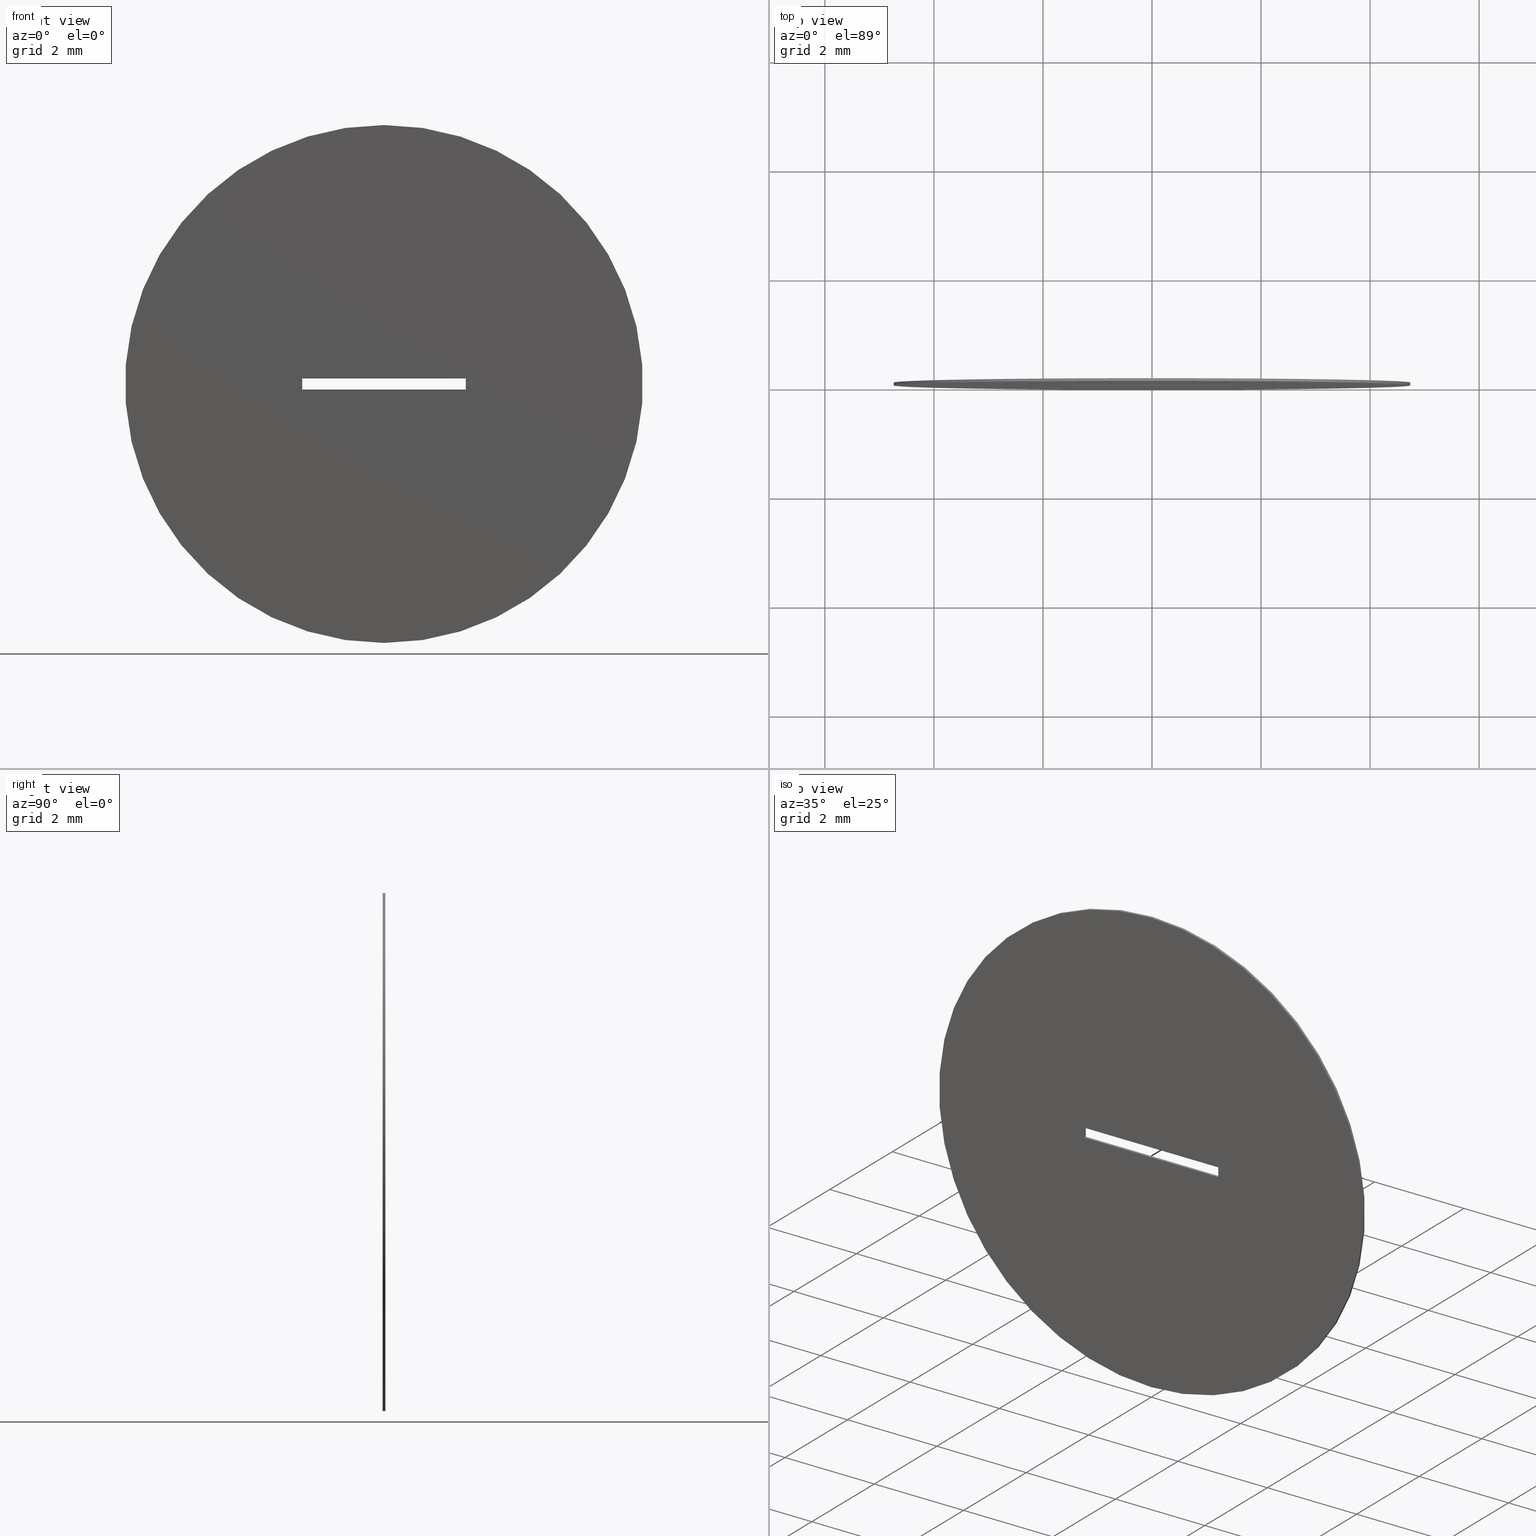
[diagram: canonical four-view strip — front | top / right | iso, engineering-drawing reading convention]
A machine part, canonical four-view strip (front | top / right | iso — engineering-drawing reading convention). The complete STEP part file that produces these views, byte-faithful:
ISO-10303-21;
HEADER;
FILE_DESCRIPTION (( 'STEP AP203' ),
    '1' );
FILE_NAME ('1.5.4.10-ZXG-9.5-200.STEP',
    '2024-05-29T06:49:09',
    ( '' ),
    ( '' ),
    'SwSTEP 2.0',
    'SolidWorks 2021',
    '' );
FILE_SCHEMA (( 'CONFIG_CONTROL_DESIGN' ));
ENDSEC;

DATA;
#1 = VERTEX_POINT ( 'NONE', #136 ) ;
#2 = VECTOR ( 'NONE', #296, 1000.000000000000000 ) ;
#3 = CC_DESIGN_PERSON_AND_ORGANIZATION_ASSIGNMENT ( #22, #309, ( #122 ) ) ;
#4 = DIRECTION ( 'NONE',  ( 0.000000000000000000, 0.000000000000000000, 1.000000000000000000 ) ) ;
#5 = CARTESIAN_POINT ( 'NONE',  ( -1.499999999999999778, 0.000000000000000000, -0.09999999999999999167 ) ) ;
#6 = DATE_AND_TIME ( #215, #162 ) ;
#7 = LINE ( 'NONE', #89, #75 ) ;
#8 = PRODUCT_DEFINITION_FORMATION_WITH_SPECIFIED_SOURCE ( '�κ�', '', #79, .NOT_KNOWN. ) ;
#9 = FACE_BOUND ( 'NONE', #263, .T. ) ;
#10 = PLANE ( 'NONE',  #181 ) ;
#11 = CARTESIAN_POINT ( 'NONE',  ( 0.000000000000000000, 0.000000000000000000, 0.000000000000000000 ) ) ;
#12 = AXIS2_PLACEMENT_3D ( 'NONE', #91, #191, #272 ) ;
#13 = DIRECTION ( 'NONE',  ( 1.000000000000000000, 0.000000000000000000, -0.000000000000000000 ) ) ;
#14 = APPLICATION_CONTEXT ( 'configuration controlled 3d designs of mechanical parts and assemblies' ) ;
#15 = FACE_OUTER_BOUND ( 'NONE', #131, .T. ) ;
#16 = CC_DESIGN_PERSON_AND_ORGANIZATION_ASSIGNMENT ( #186, #29, ( #8 ) ) ;
#17 = AXIS2_PLACEMENT_3D ( 'NONE', #66, #70, #278 ) ;
#18 = CARTESIAN_POINT ( 'NONE',  ( -1.499999999999999778, 0.05000000000000000278, -0.09999999999999999167 ) ) ;
#19 = APPLICATION_PROTOCOL_DEFINITION ( 'international standard', 'config_control_design', 1994, #189 ) ;
#20 = COORDINATED_UNIVERSAL_TIME_OFFSET ( 8, 0, .AHEAD. ) ;
#21 = VERTEX_POINT ( 'NONE', #62 ) ;
#22 = PERSON_AND_ORGANIZATION ( #146, #25 ) ;
#23 = VERTEX_POINT ( 'NONE', #269 ) ;
#24 = EDGE_CURVE ( 'NONE', #283, #183, #225, .T. ) ;
#25 = ORGANIZATION ( 'δָ��', 'δָ��', '' ) ;
#26 = ORIENTED_EDGE ( 'NONE', *, *, #124, .F. ) ;
#27 = ORIENTED_EDGE ( 'NONE', *, *, #231, .T. ) ;
#28 = ORIENTED_EDGE ( 'NONE', *, *, #24, .T. ) ;
#29 = PERSON_AND_ORGANIZATION_ROLE ( 'creator' ) ;
#30 = CARTESIAN_POINT ( 'NONE',  ( 0.000000000000000000, 0.05000000000000000278, 0.000000000000000000 ) ) ;
#31 = CARTESIAN_POINT ( 'NONE',  ( -1.499999999999999778, 0.05000000000000000278, -0.09999999999999999167 ) ) ;
#32 = CALENDAR_DATE ( 2024, 29, 5 ) ;
#33 = CARTESIAN_POINT ( 'NONE',  ( 0.000000000000000000, 0.000000000000000000, -4.750000000000000000 ) ) ;
#34 = EDGE_CURVE ( 'NONE', #202, #1, #206, .T. ) ;
#35 = COORDINATED_UNIVERSAL_TIME_OFFSET ( 8, 0, .AHEAD. ) ;
#36 = DIRECTION ( 'NONE',  ( 0.000000000000000000, -0.000000000000000000, 1.000000000000000000 ) ) ;
#37 = CIRCLE ( 'NONE', #201, 4.750000000000000000 ) ;
#38 = CARTESIAN_POINT ( 'NONE',  ( 1.500000000000000222, 0.05000000000000000278, -0.09999999999999999167 ) ) ;
#39 = FACE_OUTER_BOUND ( 'NONE', #216, .T. ) ;
#40 = APPROVAL ( #154, 'δָ��' ) ;
#41 = DIRECTION ( 'NONE',  ( -0.000000000000000000, -1.000000000000000000, -0.000000000000000000 ) ) ;
#42 = AXIS2_PLACEMENT_3D ( 'NONE', #30, #141, #56 ) ;
#43 = LOCAL_TIME ( 14, 49, 9.000000000000000000, #125 ) ;
#44 = DIRECTION ( 'NONE',  ( 0.000000000000000000, 0.000000000000000000, -1.000000000000000000 ) ) ;
#45 = CARTESIAN_POINT ( 'NONE',  ( -1.499999999999999778, 0.05000000000000000278, -0.09999999999999999167 ) ) ;
#46 = CIRCLE ( 'NONE', #42, 4.750000000000000000 ) ;
#47 = APPROVAL_ROLE ( '' ) ;
#48 = ORIENTED_EDGE ( 'NONE', *, *, #219, .T. ) ;
#49 = APPLICATION_PROTOCOL_DEFINITION ( 'international standard', 'config_control_design', 1994, #14 ) ;
#50 = EDGE_CURVE ( 'NONE', #204, #260, #168, .T. ) ;
#51 = ORIENTED_EDGE ( 'NONE', *, *, #275, .F. ) ;
#52 = ORIENTED_EDGE ( 'NONE', *, *, #275, .T. ) ;
#53 = ORIENTED_EDGE ( 'NONE', *, *, #174, .T. ) ;
#54 = CC_DESIGN_DATE_AND_TIME_ASSIGNMENT ( #294, #242, ( #120 ) ) ;
#55 = ORIENTED_EDGE ( 'NONE', *, *, #34, .T. ) ;
#56 = DIRECTION ( 'NONE',  ( 0.000000000000000000, 0.000000000000000000, 1.000000000000000000 ) ) ;
#57 = PERSON_AND_ORGANIZATION_ROLE ( 'classification_officer' ) ;
#58 = DIRECTION ( 'NONE',  ( 1.000000000000000000, 0.000000000000000000, 0.000000000000000000 ) ) ;
#59 = CARTESIAN_POINT ( 'NONE',  ( 0.000000000000000000, 0.05000000000000000278, 0.000000000000000000 ) ) ;
#60 = EDGE_CURVE ( 'NONE', #107, #283, #230, .T. ) ;
#61 = DESIGN_CONTEXT ( 'detailed design', #14, 'design' ) ;
#62 = CARTESIAN_POINT ( 'NONE',  ( 0.000000000000000000, 0.05000000000000000278, -4.750000000000000000 ) ) ;
#63 = LINE ( 'NONE', #187, #223 ) ;
#64 = LOCAL_TIME ( 14, 49, 9.000000000000000000, #134 ) ;
#65 = EDGE_CURVE ( 'NONE', #260, #183, #114, .T. ) ;
#66 = CARTESIAN_POINT ( 'NONE',  ( 0.000000000000000000, 0.000000000000000000, 0.000000000000000000 ) ) ;
#67 = DIRECTION ( 'NONE',  ( 0.000000000000000000, 0.000000000000000000, 1.000000000000000000 ) ) ;
#68 = CARTESIAN_POINT ( 'NONE',  ( -1.499999999999999778, 0.000000000000000000, 0.1000000000000000194 ) ) ;
#69 = APPROVAL_PERSON_ORGANIZATION ( #281, #40, #73 ) ;
#70 = DIRECTION ( 'NONE',  ( 0.000000000000000000, 1.000000000000000000, 0.000000000000000000 ) ) ;
#71 = EDGE_CURVE ( 'NONE', #183, #292, #7, .T. ) ;
#72 = CARTESIAN_POINT ( 'NONE',  ( 1.500000000000000222, 0.05000000000000000278, 0.1000000000000000194 ) ) ;
#73 = APPROVAL_ROLE ( '' ) ;
#74 = ORIENTED_EDGE ( 'NONE', *, *, #113, .T. ) ;
#75 = VECTOR ( 'NONE', #165, 1000.000000000000000 ) ;
#76 = APPROVAL ( #110, 'δָ��' ) ;
#77 = DIRECTION ( 'NONE',  ( 0.000000000000000000, 0.000000000000000000, 1.000000000000000000 ) ) ;
#78 = ORIENTED_EDGE ( 'NONE', *, *, #65, .T. ) ;
#79 = PRODUCT ( '1.5.4.10-ZXG-9.5-200', '1.5.4.10-ZXG-9.5-200', '', ( #127 ) ) ;
#80 = ORIENTED_EDGE ( 'NONE', *, *, #249, .T. ) ;
#81 =( LENGTH_UNIT ( ) NAMED_UNIT ( * ) SI_UNIT ( .MILLI., .METRE. ) );
#82 = EDGE_LOOP ( 'NONE', ( #261, #158, #290, #286 ) ) ;
#83 = ADVANCED_FACE ( 'NONE', ( #247, #246 ), #10, .T. ) ;
#84 = AXIS2_PLACEMENT_3D ( 'NONE', #227, #115, #266 ) ;
#85 = ORIENTED_EDGE ( 'NONE', *, *, #60, .F. ) ;
#86 = DIRECTION ( 'NONE',  ( -1.000000000000000000, -0.000000000000000000, -0.000000000000000000 ) ) ;
#87 = APPROVAL_ROLE ( '' ) ;
#88 = DIRECTION ( 'NONE',  ( -0.000000000000000000, -0.000000000000000000, -1.000000000000000000 ) ) ;
#89 = CARTESIAN_POINT ( 'NONE',  ( -1.499999999999999778, 0.000000000000000000, 0.1000000000000000194 ) ) ;
#90 = CARTESIAN_POINT ( 'NONE',  ( -1.499999999999999778, 0.000000000000000000, -0.09999999999999999167 ) ) ;
#91 = CARTESIAN_POINT ( 'NONE',  ( 1.500000000000000222, 0.05000000000000000278, -0.09999999999999999167 ) ) ;
#92 = DIRECTION ( 'NONE',  ( -0.000000000000000000, -1.000000000000000000, -0.000000000000000000 ) ) ;
#93 = AXIS2_PLACEMENT_3D ( 'NONE', #31, #123, #13 ) ;
#94 = UNCERTAINTY_MEASURE_WITH_UNIT (LENGTH_MEASURE( 1.000000000000000082E-05 ), #81, 'distance_accuracy_value', 'NONE');
#95 = LOCAL_TIME ( 14, 49, 9.000000000000000000, #233 ) ;
#96 = LINE ( 'NONE', #211, #276 ) ;
#97 = DIRECTION ( 'NONE',  ( -0.000000000000000000, -1.000000000000000000, -0.000000000000000000 ) ) ;
#98 = DIRECTION ( 'NONE',  ( 0.000000000000000000, 0.000000000000000000, -1.000000000000000000 ) ) ;
#99 = EDGE_CURVE ( 'NONE', #1, #204, #143, .T. ) ;
#100 = AXIS2_PLACEMENT_3D ( 'NONE', #11, #300, #212 ) ;
#101 = PLANE ( 'NONE',  #228 ) ;
#102 = DIRECTION ( 'NONE',  ( 1.000000000000000000, 0.000000000000000000, 0.000000000000000000 ) ) ;
#103 = PRODUCT_RELATED_PRODUCT_CATEGORY ( 'detail', '', ( #79 ) ) ;
#104 = PRODUCT_DEFINITION_SHAPE ( 'NONE', 'NONE',  #122 ) ;
#105 = ORIENTED_EDGE ( 'NONE', *, *, #231, .F. ) ;
#106 = CC_DESIGN_DATE_AND_TIME_ASSIGNMENT ( #239, #130, ( #122 ) ) ;
#107 = VERTEX_POINT ( 'NONE', #229 ) ;
#108 = PERSON_AND_ORGANIZATION ( #146, #25 ) ;
#109 = ORIENTED_EDGE ( 'NONE', *, *, #71, .F. ) ;
#110 = APPROVAL_STATUS ( 'not_yet_approved' ) ;
#111 = ORIENTED_EDGE ( 'NONE', *, *, #129, .T. ) ;
#112 = ORIENTED_EDGE ( 'NONE', *, *, #129, .F. ) ;
#113 = EDGE_CURVE ( 'NONE', #259, #21, #46, .T. ) ;
#114 = LINE ( 'NONE', #270, #192 ) ;
#115 = DIRECTION ( 'NONE',  ( 0.000000000000000000, 1.000000000000000000, 0.000000000000000000 ) ) ;
#116 = PLANE ( 'NONE',  #84 ) ;
#117 = CC_DESIGN_PERSON_AND_ORGANIZATION_ASSIGNMENT ( #138, #57, ( #120 ) ) ;
#118 = ORIENTED_EDGE ( 'NONE', *, *, #271, .T. ) ;
#119 = DIRECTION ( 'NONE',  ( -0.000000000000000000, -1.000000000000000000, -0.000000000000000000 ) ) ;
#120 = SECURITY_CLASSIFICATION ( '', '', #160 ) ;
#121 = LINE ( 'NONE', #302, #172 ) ;
#122 = PRODUCT_DEFINITION ( 'δ֪', '', #8, #61 ) ;
#123 = DIRECTION ( 'NONE',  ( 0.000000000000000000, 0.000000000000000000, 1.000000000000000000 ) ) ;
#124 = EDGE_CURVE ( 'NONE', #202, #292, #161, .T. ) ;
#125 = COORDINATED_UNIVERSAL_TIME_OFFSET ( 8, 0, .AHEAD. ) ;
#126 = VERTEX_POINT ( 'NONE', #33 ) ;
#127 = MECHANICAL_CONTEXT ( 'NONE', #189, 'mechanical' ) ;
#128 = CC_DESIGN_SECURITY_CLASSIFICATION ( #120, ( #8 ) ) ;
#129 = EDGE_CURVE ( 'NONE', #292, #107, #224, .T. ) ;
#130 = DATE_TIME_ROLE ( 'creation_date' ) ;
#131 = EDGE_LOOP ( 'NONE', ( #155, #311, #240, #78 ) ) ;
#132 = ORIENTED_EDGE ( 'NONE', *, *, #99, .T. ) ;
#133 = CLOSED_SHELL ( 'NONE', ( #257, #83, #137, #226, #148, #178, #306, #184 ) ) ;
#134 = COORDINATED_UNIVERSAL_TIME_OFFSET ( 8, 0, .AHEAD. ) ;
#135 = ADVANCED_BREP_SHAPE_REPRESENTATION ( '1.5.4.10-ZXG-9.5-200', ( #167, #156 ), #267 ) ;
#136 = CARTESIAN_POINT ( 'NONE',  ( 1.500000000000000222, 0.05000000000000000278, -0.09999999999999999167 ) ) ;
#137 = ADVANCED_FACE ( 'NONE', ( #250, #9 ), #116, .F. ) ;
#138 = PERSON_AND_ORGANIZATION ( #146, #25 ) ;
#139 = ORIENTED_EDGE ( 'NONE', *, *, #280, .F. ) ;
#140 = DATE_AND_TIME ( #32, #64 ) ;
#141 = DIRECTION ( 'NONE',  ( 0.000000000000000000, 1.000000000000000000, 0.000000000000000000 ) ) ;
#142 = CALENDAR_DATE ( 2024, 29, 5 ) ;
#143 = LINE ( 'NONE', #185, #248 ) ;
#144 = CIRCLE ( 'NONE', #17, 4.750000000000000000 ) ;
#145 = CARTESIAN_POINT ( 'NONE',  ( -1.499999999999999778, 0.05000000000000000278, -0.09999999999999999167 ) ) ;
#146 = PERSON ( 'δָ��', 'δָ��', 'δָ��', ('δָ��'), ('δָ��'), ('δָ��') ) ;
#147 = DIRECTION ( 'NONE',  ( -1.000000000000000000, 0.000000000000000000, -0.000000000000000000 ) ) ;
#148 = ADVANCED_FACE ( 'NONE', ( #208 ), #299, .T. ) ;
#149 = CARTESIAN_POINT ( 'NONE',  ( -1.499999999999999778, 0.000000000000000000, -0.09999999999999999167 ) ) ;
#150 = DIRECTION ( 'NONE',  ( 1.000000000000000000, 0.000000000000000000, 0.000000000000000000 ) ) ;
#151 = VECTOR ( 'NONE', #190, 1000.000000000000000 ) ;
#152 = CARTESIAN_POINT ( 'NONE',  ( 0.000000000000000000, 0.000000000000000000, 0.000000000000000000 ) ) ;
#153 = EDGE_LOOP ( 'NONE', ( #109, #258, #53, #235 ) ) ;
#154 = APPROVAL_STATUS ( 'not_yet_approved' ) ;
#155 = ORIENTED_EDGE ( 'NONE', *, *, #24, .F. ) ;
#156 = AXIS2_PLACEMENT_3D ( 'NONE', #152, #77, #102 ) ;
#157 = CALENDAR_DATE ( 2024, 29, 5 ) ;
#158 = ORIENTED_EDGE ( 'NONE', *, *, #34, .F. ) ;
#159 = CC_DESIGN_PERSON_AND_ORGANIZATION_ASSIGNMENT ( #177, #199, ( #79 ) ) ;
#160 = SECURITY_CLASSIFICATION_LEVEL ( 'unclassified' ) ;
#161 = LINE ( 'NONE', #243, #244 ) ;
#162 = LOCAL_TIME ( 14, 49, 9.000000000000000000, #20 ) ;
#163 = SHAPE_DEFINITION_REPRESENTATION ( #104, #135 ) ;
#164 = FACE_OUTER_BOUND ( 'NONE', #207, .T. ) ;
#165 = DIRECTION ( 'NONE',  ( 1.000000000000000000, 0.000000000000000000, 0.000000000000000000 ) ) ;
#166 = DIRECTION ( 'NONE',  ( -0.000000000000000000, -1.000000000000000000, -0.000000000000000000 ) ) ;
#167 = MANIFOLD_SOLID_BREP ( '͹̨-����1', #133 ) ;
#168 = LINE ( 'NONE', #145, #237 ) ;
#169 = APPROVAL_PERSON_ORGANIZATION ( #108, #76, #87 ) ;
#170 = LINE ( 'NONE', #173, #262 ) ;
#171 = CARTESIAN_POINT ( 'NONE',  ( 0.000000000000000000, 0.05000000000000000278, 0.000000000000000000 ) ) ;
#172 = VECTOR ( 'NONE', #97, 1000.000000000000000 ) ;
#173 = CARTESIAN_POINT ( 'NONE',  ( 5.817072295949927426E-16, 0.05000000000000000278, 4.750000000000000000 ) ) ;
#174 = EDGE_CURVE ( 'NONE', #260, #202, #63, .T. ) ;
#175 = DIRECTION ( 'NONE',  ( -0.000000000000000000, -1.000000000000000000, -0.000000000000000000 ) ) ;
#176 = ORIENTED_EDGE ( 'NONE', *, *, #238, .T. ) ;
#177 = PERSON_AND_ORGANIZATION ( #146, #25 ) ;
#178 = ADVANCED_FACE ( 'NONE', ( #164 ), #245, .T. ) ;
#179 = EDGE_LOOP ( 'NONE', ( #105, #234 ) ) ;
#180 = ORIENTED_EDGE ( 'NONE', *, *, #219, .F. ) ;
#181 = AXIS2_PLACEMENT_3D ( 'NONE', #59, #205, #36 ) ;
#182 = LOCAL_TIME ( 14, 49, 9.000000000000000000, #35 ) ;
#183 = VERTEX_POINT ( 'NONE', #68 ) ;
#184 = ADVANCED_FACE ( 'NONE', ( #213 ), #101, .T. ) ;
#185 = CARTESIAN_POINT ( 'NONE',  ( -1.499999999999999778, 0.05000000000000000278, -0.09999999999999999167 ) ) ;
#186 = PERSON_AND_ORGANIZATION ( #146, #25 ) ;
#187 = CARTESIAN_POINT ( 'NONE',  ( -1.499999999999999778, 0.05000000000000000278, 0.1000000000000000194 ) ) ;
#188 = DIRECTION ( 'NONE',  ( -0.000000000000000000, -1.000000000000000000, -0.000000000000000000 ) ) ;
#189 = APPLICATION_CONTEXT ( 'configuration controlled 3d designs of mechanical parts and assemblies' ) ;
#190 = DIRECTION ( 'NONE',  ( 0.000000000000000000, 0.000000000000000000, 1.000000000000000000 ) ) ;
#191 = DIRECTION ( 'NONE',  ( -1.000000000000000000, 0.000000000000000000, 0.000000000000000000 ) ) ;
#192 = VECTOR ( 'NONE', #166, 1000.000000000000000 ) ;
#193 = LINE ( 'NONE', #253, #203 ) ;
#194 = CARTESIAN_POINT ( 'NONE',  ( 0.000000000000000000, 0.05000000000000000278, 0.000000000000000000 ) ) ;
#195 = CYLINDRICAL_SURFACE ( 'NONE', #252, 4.750000000000000000 ) ;
#196 = CC_DESIGN_APPROVAL ( #76, ( #120 ) ) ;
#197 = CARTESIAN_POINT ( 'NONE',  ( -1.499999999999999778, 0.05000000000000000278, 0.1000000000000000194 ) ) ;
#198 = PERSON_AND_ORGANIZATION ( #146, #25 ) ;
#199 = PERSON_AND_ORGANIZATION_ROLE ( 'design_owner' ) ;
#200 = DIRECTION ( 'NONE',  ( 0.000000000000000000, 0.000000000000000000, -1.000000000000000000 ) ) ;
#201 = AXIS2_PLACEMENT_3D ( 'NONE', #171, #210, #67 ) ;
#202 = VERTEX_POINT ( 'NONE', #72 ) ;
#203 = VECTOR ( 'NONE', #41, 1000.000000000000000 ) ;
#204 = VERTEX_POINT ( 'NONE', #18 ) ;
#205 = DIRECTION ( 'NONE',  ( 0.000000000000000000, 1.000000000000000000, 0.000000000000000000 ) ) ;
#206 = LINE ( 'NONE', #38, #2 ) ;
#207 = EDGE_LOOP ( 'NONE', ( #85, #139, #132, #176 ) ) ;
#208 = FACE_OUTER_BOUND ( 'NONE', #298, .T. ) ;
#209 = APPROVAL ( #279, 'δָ��' ) ;
#210 = DIRECTION ( 'NONE',  ( 0.000000000000000000, 1.000000000000000000, 0.000000000000000000 ) ) ;
#211 = CARTESIAN_POINT ( 'NONE',  ( -1.499999999999999778, 0.05000000000000000278, -0.09999999999999999167 ) ) ;
#212 = DIRECTION ( 'NONE',  ( 0.000000000000000000, 0.000000000000000000, 1.000000000000000000 ) ) ;
#213 = FACE_OUTER_BOUND ( 'NONE', #153, .T. ) ;
#214 = CALENDAR_DATE ( 2024, 29, 5 ) ;
#215 = CALENDAR_DATE ( 2024, 29, 5 ) ;
#216 = EDGE_LOOP ( 'NONE', ( #308, #118, #80, #51 ) ) ;
#217 = DATE_AND_TIME ( #214, #43 ) ;
#218 = ORIENTED_EDGE ( 'NONE', *, *, #280, .T. ) ;
#219 = EDGE_CURVE ( 'NONE', #21, #259, #37, .T. ) ;
#220 = EDGE_LOOP ( 'NONE', ( #236, #180, #52, #27 ) ) ;
#221 = APPROVAL_DATE_TIME ( #6, #209 ) ;
#222 = ORIENTED_EDGE ( 'NONE', *, *, #60, .T. ) ;
#223 = VECTOR ( 'NONE', #58, 1000.000000000000000 ) ;
#224 = LINE ( 'NONE', #295, #282 ) ;
#225 = LINE ( 'NONE', #90, #151 ) ;
#226 = ADVANCED_FACE ( 'NONE', ( #303 ), #256, .T. ) ;
#227 = CARTESIAN_POINT ( 'NONE',  ( 0.000000000000000000, 0.000000000000000000, 0.000000000000000000 ) ) ;
#228 = AXIS2_PLACEMENT_3D ( 'NONE', #197, #273, #147 ) ;
#229 = CARTESIAN_POINT ( 'NONE',  ( 1.500000000000000222, 0.000000000000000000, -0.09999999999999999167 ) ) ;
#230 = LINE ( 'NONE', #5, #310 ) ;
#231 = EDGE_CURVE ( 'NONE', #126, #23, #144, .T. ) ;
#232 = CARTESIAN_POINT ( 'NONE',  ( 1.500000000000000222, 0.000000000000000000, 0.1000000000000000194 ) ) ;
#233 = COORDINATED_UNIVERSAL_TIME_OFFSET ( 8, 0, .AHEAD. ) ;
#234 = ORIENTED_EDGE ( 'NONE', *, *, #249, .F. ) ;
#235 = ORIENTED_EDGE ( 'NONE', *, *, #124, .T. ) ;
#236 = ORIENTED_EDGE ( 'NONE', *, *, #271, .F. ) ;
#237 = VECTOR ( 'NONE', #4, 1000.000000000000000 ) ;
#238 = EDGE_CURVE ( 'NONE', #204, #283, #96, .T. ) ;
#239 = DATE_AND_TIME ( #157, #95 ) ;
#240 = ORIENTED_EDGE ( 'NONE', *, *, #50, .T. ) ;
#241 = EDGE_LOOP ( 'NONE', ( #48, #74 ) ) ;
#242 = DATE_TIME_ROLE ( 'classification_date' ) ;
#243 = CARTESIAN_POINT ( 'NONE',  ( 1.500000000000000222, 0.05000000000000000278, 0.1000000000000000194 ) ) ;
#244 = VECTOR ( 'NONE', #188, 1000.000000000000000 ) ;
#245 = PLANE ( 'NONE',  #93 ) ;
#246 = FACE_BOUND ( 'NONE', #82, .T. ) ;
#247 = FACE_OUTER_BOUND ( 'NONE', #241, .T. ) ;
#248 = VECTOR ( 'NONE', #264, 1000.000000000000000 ) ;
#249 = EDGE_CURVE ( 'NONE', #23, #126, #297, .T. ) ;
#250 = FACE_OUTER_BOUND ( 'NONE', #179, .T. ) ;
#251 = DIRECTION ( 'NONE',  ( -0.000000000000000000, -1.000000000000000000, -0.000000000000000000 ) ) ;
#252 = AXIS2_PLACEMENT_3D ( 'NONE', #301, #251, #44 ) ;
#253 = CARTESIAN_POINT ( 'NONE',  ( 0.000000000000000000, 0.05000000000000000278, -4.750000000000000000 ) ) ;
#254 = CC_DESIGN_APPROVAL ( #40, ( #122 ) ) ;
#255 = PLANE ( 'NONE',  #304 ) ;
#256 = CYLINDRICAL_SURFACE ( 'NONE', #291, 4.750000000000000000 ) ;
#257 = ADVANCED_FACE ( 'NONE', ( #39 ), #195, .T. ) ;
#258 = ORIENTED_EDGE ( 'NONE', *, *, #65, .F. ) ;
#259 = VERTEX_POINT ( 'NONE', #274 ) ;
#260 = VERTEX_POINT ( 'NONE', #277 ) ;
#261 = ORIENTED_EDGE ( 'NONE', *, *, #99, .F. ) ;
#262 = VECTOR ( 'NONE', #92, 1000.000000000000000 ) ;
#263 = EDGE_LOOP ( 'NONE', ( #111, #222, #28, #288 ) ) ;
#264 = DIRECTION ( 'NONE',  ( -1.000000000000000000, -0.000000000000000000, -0.000000000000000000 ) ) ;
#265 = APPROVAL_DATE_TIME ( #140, #76 ) ;
#266 = DIRECTION ( 'NONE',  ( 0.000000000000000000, -0.000000000000000000, 1.000000000000000000 ) ) ;
#267 =( GEOMETRIC_REPRESENTATION_CONTEXT ( 3 ) GLOBAL_UNCERTAINTY_ASSIGNED_CONTEXT ( ( #94 ) ) GLOBAL_UNIT_ASSIGNED_CONTEXT ( ( #81, #287, #285 ) ) REPRESENTATION_CONTEXT ( 'NONE', 'WORKASPACE' ) );
#268 = PERSON_AND_ORGANIZATION ( #146, #25 ) ;
#269 = CARTESIAN_POINT ( 'NONE',  ( 5.817072295949927426E-16, 0.000000000000000000, 4.750000000000000000 ) ) ;
#270 = CARTESIAN_POINT ( 'NONE',  ( -1.499999999999999778, 0.05000000000000000278, 0.1000000000000000194 ) ) ;
#271 = EDGE_CURVE ( 'NONE', #259, #23, #170, .T. ) ;
#272 = DIRECTION ( 'NONE',  ( 0.000000000000000000, 0.000000000000000000, 1.000000000000000000 ) ) ;
#273 = DIRECTION ( 'NONE',  ( 0.000000000000000000, 0.000000000000000000, -1.000000000000000000 ) ) ;
#274 = CARTESIAN_POINT ( 'NONE',  ( 5.817072295949927426E-16, 0.05000000000000000278, 4.750000000000000000 ) ) ;
#275 = EDGE_CURVE ( 'NONE', #21, #126, #193, .T. ) ;
#276 = VECTOR ( 'NONE', #175, 1000.000000000000000 ) ;
#277 = CARTESIAN_POINT ( 'NONE',  ( -1.499999999999999778, 0.05000000000000000278, 0.1000000000000000194 ) ) ;
#278 = DIRECTION ( 'NONE',  ( 0.000000000000000000, 0.000000000000000000, 1.000000000000000000 ) ) ;
#279 = APPROVAL_STATUS ( 'not_yet_approved' ) ;
#280 = EDGE_CURVE ( 'NONE', #1, #107, #121, .T. ) ;
#281 = PERSON_AND_ORGANIZATION ( #146, #25 ) ;
#282 = VECTOR ( 'NONE', #88, 1000.000000000000000 ) ;
#283 = VERTEX_POINT ( 'NONE', #149 ) ;
#284 = CC_DESIGN_APPROVAL ( #209, ( #8 ) ) ;
#285 =( NAMED_UNIT ( * ) SI_UNIT ( $, .STERADIAN. ) SOLID_ANGLE_UNIT ( ) );
#286 = ORIENTED_EDGE ( 'NONE', *, *, #50, .F. ) ;
#287 =( NAMED_UNIT ( * ) PLANE_ANGLE_UNIT ( ) SI_UNIT ( $, .RADIAN. ) );
#288 = ORIENTED_EDGE ( 'NONE', *, *, #71, .T. ) ;
#289 = PERSON_AND_ORGANIZATION_ROLE ( 'design_supplier' ) ;
#290 = ORIENTED_EDGE ( 'NONE', *, *, #174, .F. ) ;
#291 = AXIS2_PLACEMENT_3D ( 'NONE', #194, #119, #98 ) ;
#292 = VERTEX_POINT ( 'NONE', #232 ) ;
#293 = CC_DESIGN_PERSON_AND_ORGANIZATION_ASSIGNMENT ( #268, #289, ( #8 ) ) ;
#294 = DATE_AND_TIME ( #142, #182 ) ;
#295 = CARTESIAN_POINT ( 'NONE',  ( 1.500000000000000222, 0.000000000000000000, -0.09999999999999999167 ) ) ;
#296 = DIRECTION ( 'NONE',  ( -0.000000000000000000, -0.000000000000000000, -1.000000000000000000 ) ) ;
#297 = CIRCLE ( 'NONE', #100, 4.750000000000000000 ) ;
#298 = EDGE_LOOP ( 'NONE', ( #112, #26, #55, #218 ) ) ;
#299 = PLANE ( 'NONE',  #12 ) ;
#300 = DIRECTION ( 'NONE',  ( 0.000000000000000000, 1.000000000000000000, 0.000000000000000000 ) ) ;
#301 = CARTESIAN_POINT ( 'NONE',  ( 0.000000000000000000, 0.05000000000000000278, 0.000000000000000000 ) ) ;
#302 = CARTESIAN_POINT ( 'NONE',  ( 1.500000000000000222, 0.05000000000000000278, -0.09999999999999999167 ) ) ;
#303 = FACE_OUTER_BOUND ( 'NONE', #220, .T. ) ;
#304 = AXIS2_PLACEMENT_3D ( 'NONE', #45, #150, #200 ) ;
#305 = APPROVAL_PERSON_ORGANIZATION ( #198, #209, #47 ) ;
#306 = ADVANCED_FACE ( 'NONE', ( #15 ), #255, .T. ) ;
#307 = APPROVAL_DATE_TIME ( #217, #40 ) ;
#308 = ORIENTED_EDGE ( 'NONE', *, *, #113, .F. ) ;
#309 = PERSON_AND_ORGANIZATION_ROLE ( 'creator' ) ;
#310 = VECTOR ( 'NONE', #86, 1000.000000000000000 ) ;
#311 = ORIENTED_EDGE ( 'NONE', *, *, #238, .F. ) ;
ENDSEC;
END-ISO-10303-21;
